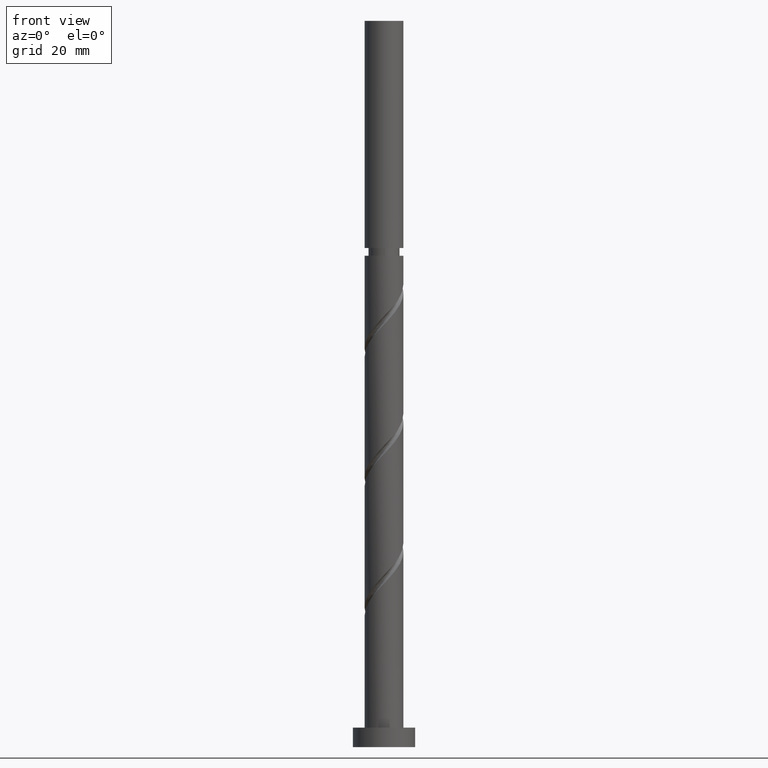
[diagram: clean part render]
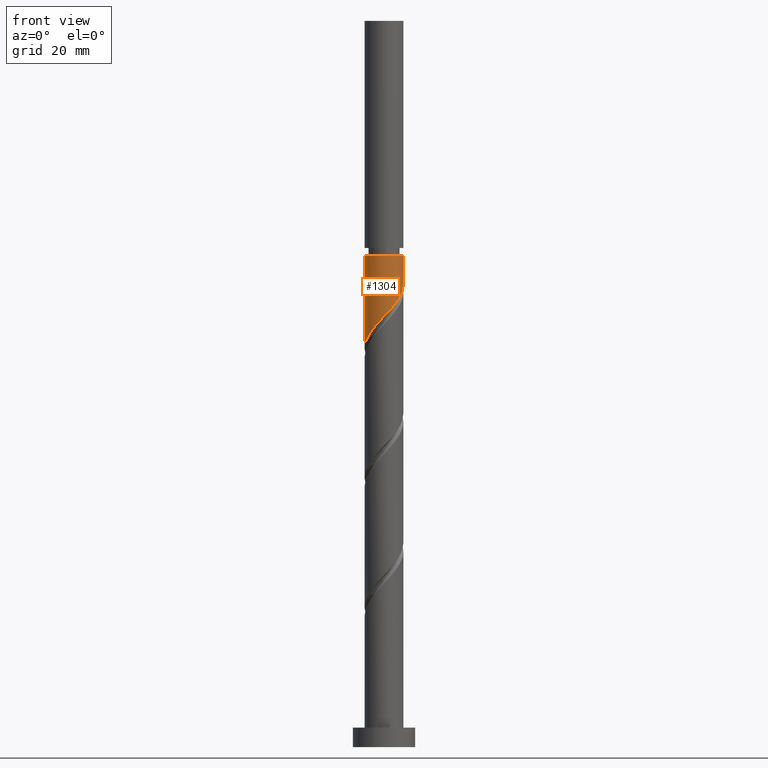
[diagram: same view with one face highlighted and labeled with its STEP entity id]
A machine part, front view. The second image highlights one B-rep face of the part: STEP entity #1304.
In plain terms, the highlighted cylindrical surface (edge-blend (fillet) strip) has radius 5 mm, axis along (-0, -0, -1).
Its self-contained STEP definition (entity closure, byte-faithful):
#6 = CARTESIAN_POINT ( 'NONE',  ( -1.640084675284862126, -4.769007418836828549, 109.1702451623553145 ) ) ;
#56 = VERTEX_POINT ( 'NONE', #653 ) ;
#66 = EDGE_CURVE ( 'NONE', #1113, #1273, #1250, .T. ) ;
#70 = CARTESIAN_POINT ( 'NONE',  ( 5.000000000000000000, 6.123233995736766282E-16, 187.0000000000000000 ) ) ;
#109 = VECTOR ( 'NONE', #1064, 1000.000000000000000 ) ;
#126 = CARTESIAN_POINT ( 'NONE',  ( -4.999999999999997335, -0.1537097582883674984, 102.7580866167046310 ) ) ;
#135 = CARTESIAN_POINT ( 'NONE',  ( 4.769007418836825885, -1.640084675284864346, 117.5035784956886147 ) ) ;
#140 = DIRECTION ( 'NONE',  ( -0.000000000000000000, -0.000000000000000000, -1.000000000000000000 ) ) ;
#146 = CARTESIAN_POINT ( 'NONE',  ( -3.804858702572657680, -3.310039237906718057, 106.3924673845775288 ) ) ;
#255 = CARTESIAN_POINT ( 'NONE',  ( -2.229297383336808380, -4.475514850455492244, 108.4758007179108574 ) ) ;
#270 = CARTESIAN_POINT ( 'NONE',  ( -3.311684396980706158, -3.746030759990437442, 107.0869118290219717 ) ) ;
#289 = AXIS2_PLACEMENT_3D ( 'NONE', #536, #1213, #395 ) ;
#290 = CARTESIAN_POINT ( 'NONE',  ( 3.310039237906717613, -3.804858702572657680, 114.7258007179108290 ) ) ;
#356 = EDGE_CURVE ( 'NONE', #1273, #1432, #613, .T. ) ;
#365 = ORIENTED_EDGE ( 'NONE', *, *, #356, .T. ) ;
#372 = CARTESIAN_POINT ( 'NONE',  ( 4.999999999999997335, 6.123233995736764310E-16, 126.5313562734664004 ) ) ;
#391 = CARTESIAN_POINT ( 'NONE',  ( 0.000000000000000000, 0.000000000000000000, 187.0000000000000000 ) ) ;
#395 = DIRECTION ( 'NONE',  ( -1.000000000000000000, 0.000000000000000000, 0.000000000000000000 ) ) ;
#400 = CARTESIAN_POINT ( 'NONE',  ( -4.999999999999997335, 0.000000000000000000, 126.5313562734664004 ) ) ;
#473 = LINE ( 'NONE', #70, #109 ) ;
#498 = DIRECTION ( 'NONE',  ( -0.000000000000000000, -0.000000000000000000, -1.000000000000000000 ) ) ;
#499 = EDGE_LOOP ( 'NONE', ( #1266, #720, #365, #535 ) ) ;
#532 = CARTESIAN_POINT ( 'NONE',  ( 4.999999999999998224, 1.674823857685475953E-15, 119.2615895953431533 ) ) ;
#535 = ORIENTED_EDGE ( 'NONE', *, *, #1331, .F. ) ;
#536 = CARTESIAN_POINT ( 'NONE',  ( 0.000000000000000000, 0.000000000000000000, 126.5313562734664004 ) ) ;
#548 =( BOUNDED_CURVE ( )  B_SPLINE_CURVE ( 2, ( #532, #1365, #1088, #135, #1074, #684, #1494, #290, #1210, #818, #1360, #935, #1236, #1472, #825, #6, #255, #1229, #270, #146, #555, #1102, #1619, #1197, #796, #126, #1217 ),
 .UNSPECIFIED., .F., .T. ) 
 B_SPLINE_CURVE_WITH_KNOTS ( ( 3, 2, 2, 2, 2, 2, 2, 2, 2, 2, 2, 2, 2, 3 ),
 ( 0.3045317669814462391, 0.3125000000000000000, 0.3229166666666666852, 0.3333333333333333148, 0.3437500000000000000, 0.3541666666666666852, 0.3645833333333333148, 0.3750000000000000000, 0.3854166666666666852, 0.3958333333333333148, 0.4062500000000000000, 0.4166666666666666852, 0.4270833333333333148, 0.4295317669814462391 ),
 .UNSPECIFIED. ) 
 CURVE ( )  GEOMETRIC_REPRESENTATION_ITEM ( )  RATIONAL_B_SPLINE_CURVE ( ( 0.9062941362546302893, 0.9031415850403345935, 0.9090909090909098378, 0.9013135103398283166, 0.9090909090909098378, 0.9013135103398283166, 0.9090909090909098378, 0.9013135103398283166, 0.9090909090909098378, 0.9013135103398283166, 0.9090909090909098378, 0.9013135103398283166, 0.9090909090909098378, 0.9013135103398283166, 0.9090909090909098378, 0.9013135103398283166, 0.9090909090909098378, 0.9013135103398283166, 0.9090909090909098378, 0.9013135103398283166, 0.9090909090909098378, 0.9013135103398283166, 0.9090909090909098378, 0.9013135103398283166, 0.9090909090909098378, 0.9072628343904036718, 0.9062941362546302893 ) ) 
 REPRESENTATION_ITEM ( '' )  );
#550 = CYLINDRICAL_SURFACE ( 'NONE', #906, 5.000000000000000000 ) ;
#555 = CARTESIAN_POINT ( 'NONE',  ( -4.168385591787596489, -2.761260863840565793, 105.6980229401330860 ) ) ;
#613 = LINE ( 'NONE', #763, #1022 ) ;
#653 = CARTESIAN_POINT ( 'NONE',  ( 4.999999999999998224, 1.674823857685475953E-15, 119.2615895953431533 ) ) ;
#684 = CARTESIAN_POINT ( 'NONE',  ( 4.182022282074153274, -2.818510091388755079, 116.1146896067997147 ) ) ;
#720 = ORIENTED_EDGE ( 'NONE', *, *, #66, .T. ) ;
#763 = CARTESIAN_POINT ( 'NONE',  ( -5.000000000000000000, 0.000000000000000000, 187.0000000000000000 ) ) ;
#796 = CARTESIAN_POINT ( 'NONE',  ( -4.990558247177372841, -0.3071292586678953662, 102.9202451623553003 ) ) ;
#818 = CARTESIAN_POINT ( 'NONE',  ( 2.212482489774412642, -4.531912481002538406, 113.3369118290219575 ) ) ;
#825 = CARTESIAN_POINT ( 'NONE',  ( -0.9949874371066216305, -4.899999999999997691, 109.8646896067997432 ) ) ;
#906 = AXIS2_PLACEMENT_3D ( 'NONE', #391, #140, #1080 ) ;
#935 = CARTESIAN_POINT ( 'NONE',  ( 0.9641487162641707576, -4.950123913191579739, 111.9480229401330291 ) ) ;
#951 = FACE_OUTER_BOUND ( 'NONE', #499, .T. ) ;
#1022 = VECTOR ( 'NONE', #498, 1000.000000000000000 ) ;
#1064 = DIRECTION ( 'NONE',  ( -0.000000000000000000, -0.000000000000000000, -1.000000000000000000 ) ) ;
#1074 = CARTESIAN_POINT ( 'NONE',  ( 4.475514850455490468, -2.229297383336810157, 116.8091340512441718 ) ) ;
#1080 = DIRECTION ( 'NONE',  ( -1.000000000000000000, 0.000000000000000000, 0.000000000000000000 ) ) ;
#1088 = CARTESIAN_POINT ( 'NONE',  ( 4.899999999999997691, -0.9949874371066218526, 118.1980229401330860 ) ) ;
#1102 = CARTESIAN_POINT ( 'NONE',  ( -4.531912481002538406, -2.212482489774412642, 105.0035784956886005 ) ) ;
#1108 = CARTESIAN_POINT ( 'NONE',  ( -4.999999999999998224, -2.871126613175101240E-15, 102.5949229286764535 ) ) ;
#1113 = VERTEX_POINT ( 'NONE', #372 ) ;
#1197 = CARTESIAN_POINT ( 'NONE',  ( -4.950123913191580627, -0.9641487162641722009, 103.6146896067997147 ) ) ;
#1210 = CARTESIAN_POINT ( 'NONE',  ( 2.761260863840563573, -4.168385591787598266, 114.0313562734664004 ) ) ;
#1213 = DIRECTION ( 'NONE',  ( -0.000000000000000000, -0.000000000000000000, -1.000000000000000000 ) ) ;
#1217 = CARTESIAN_POINT ( 'NONE',  ( -4.999999999999998224, -2.871126613175101240E-15, 102.5949229286764535 ) ) ;
#1229 = CARTESIAN_POINT ( 'NONE',  ( -2.818510091388753303, -4.182022282074155939, 107.7813562734664004 ) ) ;
#1236 = CARTESIAN_POINT ( 'NONE',  ( 0.3071292586678939784, -4.990558247177372841, 111.2535784956886289 ) ) ;
#1250 = CIRCLE ( 'NONE', #289, 4.999999999999997335 ) ;
#1266 = ORIENTED_EDGE ( 'NONE', *, *, #1598, .F. ) ;
#1273 = VERTEX_POINT ( 'NONE', #400 ) ;
#1304 = ADVANCED_FACE ( 'NONE', ( #951 ), #550, .T. ) ;
#1331 = EDGE_CURVE ( 'NONE', #56, #1432, #548, .T. ) ;
#1360 = CARTESIAN_POINT ( 'NONE',  ( 1.588315603019292865, -4.741018197097059073, 112.6424673845775288 ) ) ;
#1365 = CARTESIAN_POINT ( 'NONE',  ( 4.999999999999998224, -0.5025189076296062707, 118.7281632261538817 ) ) ;
#1432 = VERTEX_POINT ( 'NONE', #1108 ) ;
#1472 = CARTESIAN_POINT ( 'NONE',  ( -0.3498901989283830782, -5.030992581163167721, 110.5591340512441718 ) ) ;
#1494 = CARTESIAN_POINT ( 'NONE',  ( 3.746030759990437442, -3.311684396980706602, 115.4202451623553003 ) ) ;
#1598 = EDGE_CURVE ( 'NONE', #1113, #56, #473, .T. ) ;
#1619 = CARTESIAN_POINT ( 'NONE',  ( -4.741018197097059073, -1.588315603019292865, 104.3091340512441718 ) ) ;